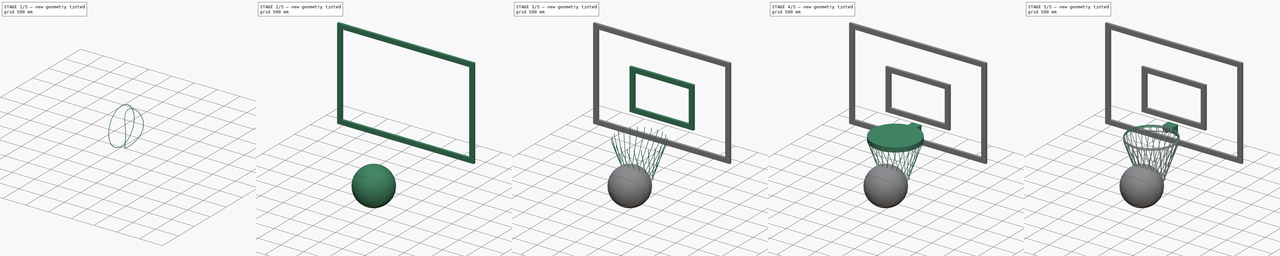
[diagram: build sequence overview — one tinted view per stage of 5, left to right]
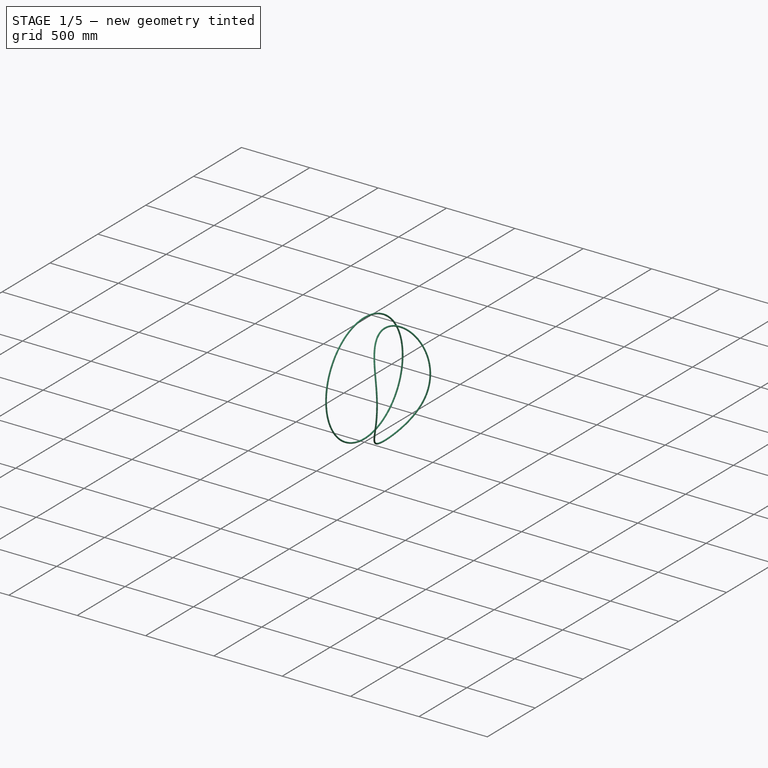
[diagram: stage 1 of 5 — iso view after this stage's code; geometry added in this stage tinted green]
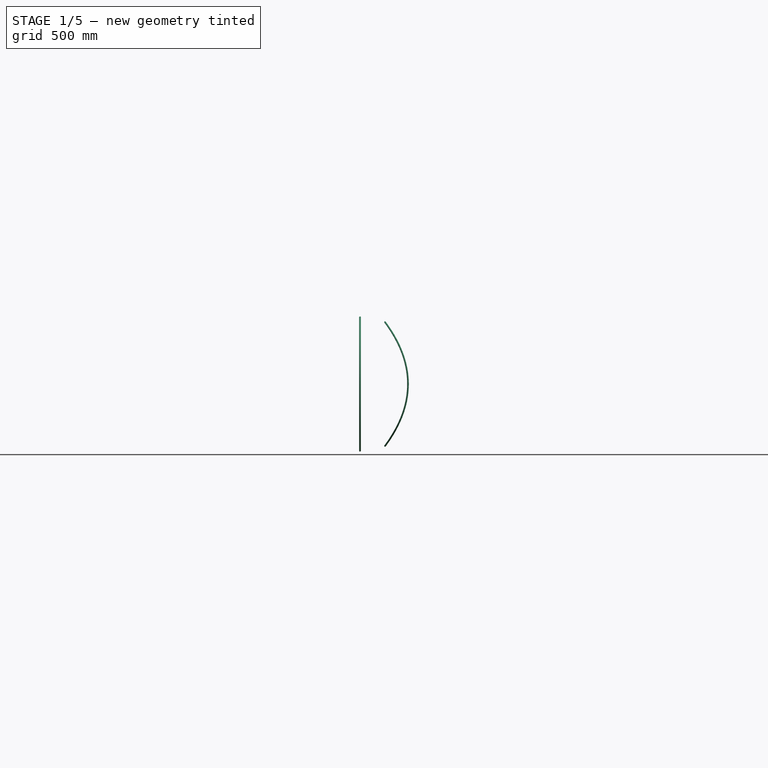
[diagram: stage 1 of 5 — front view after this stage's code; geometry added in this stage tinted green]
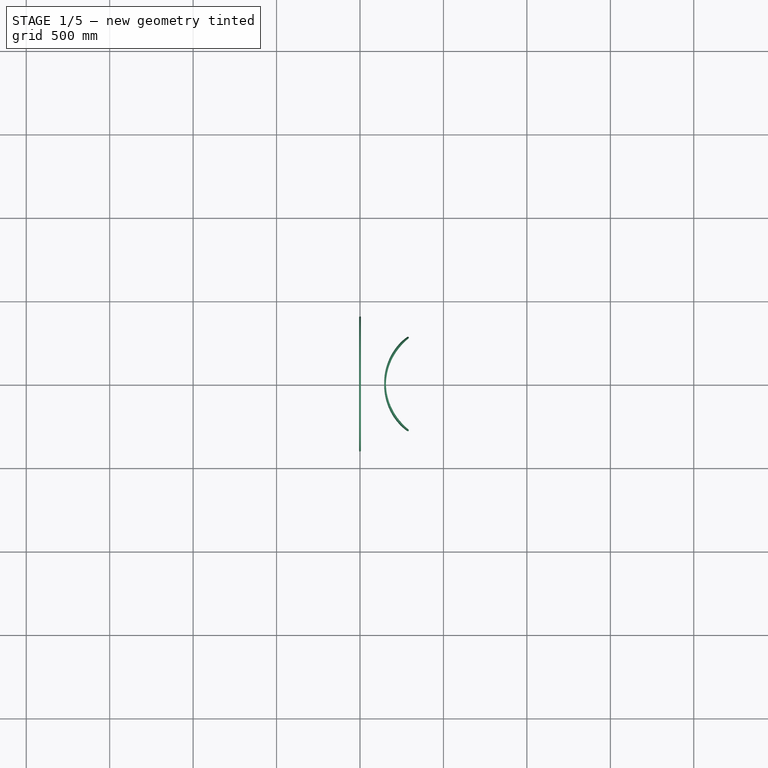
[diagram: stage 1 of 5 — top view after this stage's code; geometry added in this stage tinted green]
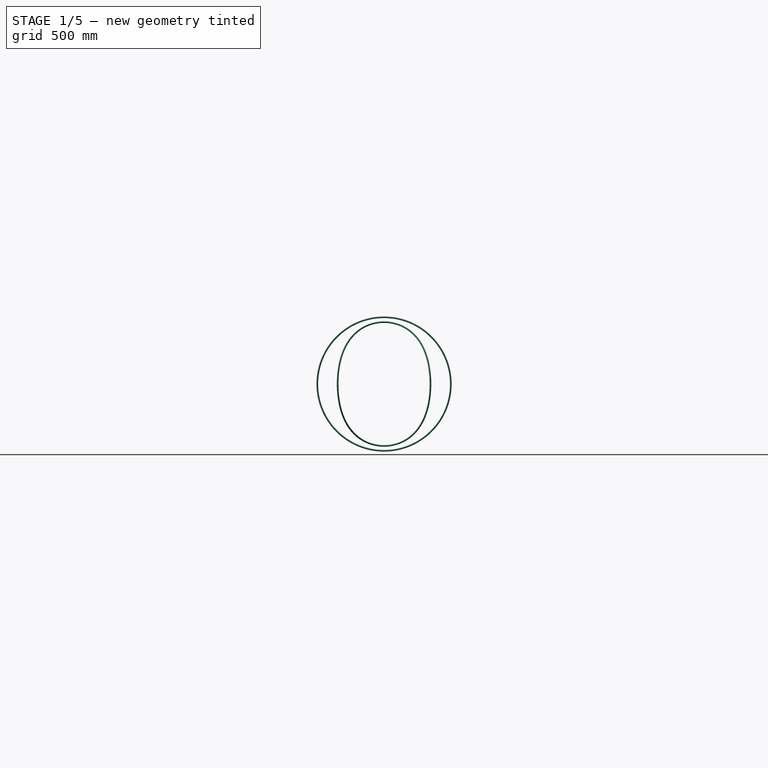
[diagram: stage 1 of 5 — right view after this stage's code; geometry added in this stage tinted green]
FCSTD DOCUMENT  (FreeCAD 0.18R14555 (Git shallow))
Label: BASKETBALL
License: CreativeCommons Attribution-NonCommercial-ShareAlike
LicenseURL: http://creativecommons.org/licenses/by-nc-sa/4.0/
objects: Part::Cut×6, Part::Cylinder×3, Part::Circle×3, Part::Sweep×3, Part::Torus×3, Part::FeaturePython×3, Part::Box×3, Part::Feature×3, Part::Sphere×2, Part::MultiFuse×2, Sketcher::SketchObject×2, Part::Mirroring×2, App::DocumentObjectGroupPython×2, Part::Chamfer×1, Part::Thickness×1, PartDesign::Revolution×1, PartDesign::Body×1, Part::Compound×1
note: 41 computed .brp shape members not serialized (recipe doc carries the construction recipe); baked Part::Feature solids carry a one-line shape summary decoded from their .brp

FEATURE [Part::Sphere] Sphere
  Angle1 = -90
  Angle2 = 90
  Angle3 = 360
  AttacherType = Attacher::AttachEngine3D
  Radius = 400
FEATURE [Part::Cylinder] Cylinder
  Angle = 360
  AttacherType = Attacher::AttachEngine3D
  Height = 1000
  Placement = pos=(500,0,-497.11) rot=(0,0,1;0rad)
  Radius = 350
FEATURE [Part::Cut] Cut
  Base = -> Sphere
  Tool = -> Cylinder
FEATURE [Part::Circle] Circle
  Angle0 = 0
  Angle1 = 360
  AttacherType = Attacher::AttachEngine3D
  Placement = pos=(150.01,8.2e-14,370.83) rot=(1,0,0;1.5708rad)
  Radius = 5
FEATURE [Part::Sweep] Sweep
  Frenet = true
  Sections = -> [Circle]
  Solid = true
  Spine = -> Cut [Edge2,Edge5,Edge6]
  Transition = 0
FEATURE [Part::Torus] Torus
  Angle1 = -180
  Angle2 = 180
  Angle3 = 360
  AttacherType = Attacher::AttachEngine3D
  Placement = pos=(0,0,0) rot=(1,0,0;1.5708rad)
  Radius1 = 400
  Radius2 = 5
FEATURE [Part::FeaturePython] Clone001  label="Torus001"  # Draft clone (typed FeaturePython)
  AttacherType = Attacher::AttachEngine3D
  Fuse = false
  Objects = -> [Torus]
  Placement = pos=(0,0,0) rot=(0.57735,0.57735,0.57735;2.0944rad)
  Scale = (1,1,1)
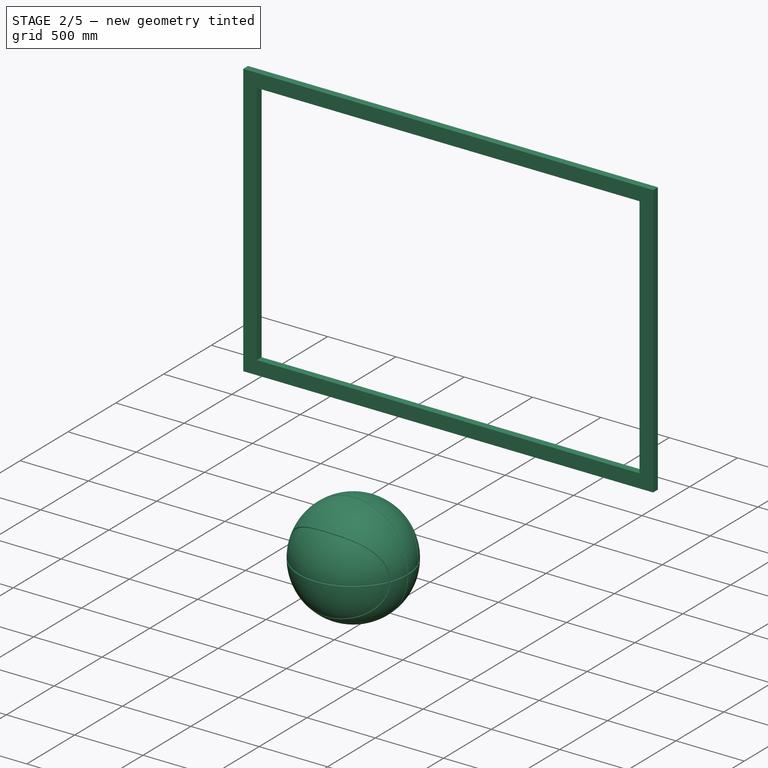
[diagram: stage 2 of 5 — iso view after this stage's code; geometry added in this stage tinted green]
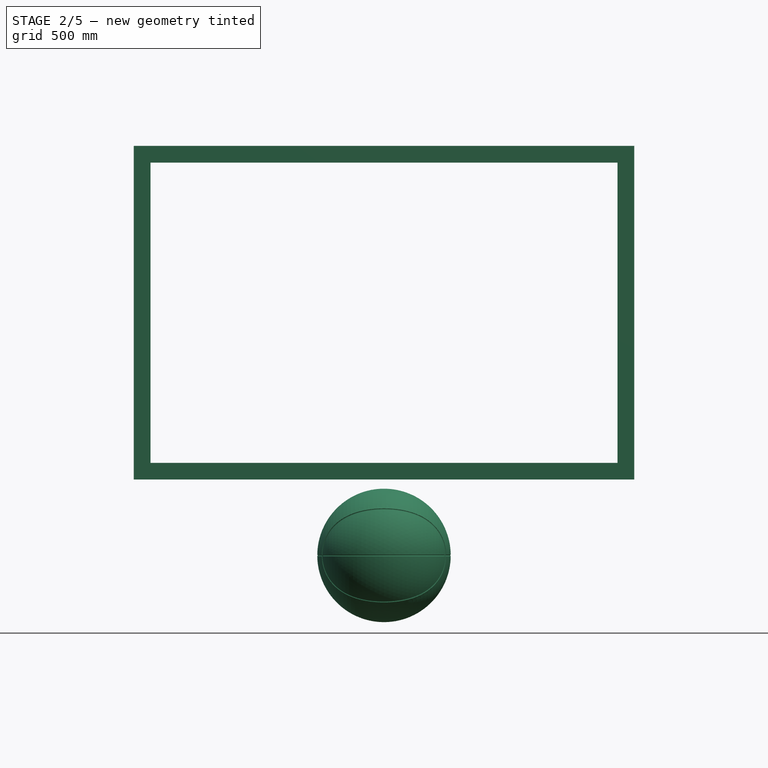
[diagram: stage 2 of 5 — front view after this stage's code; geometry added in this stage tinted green]
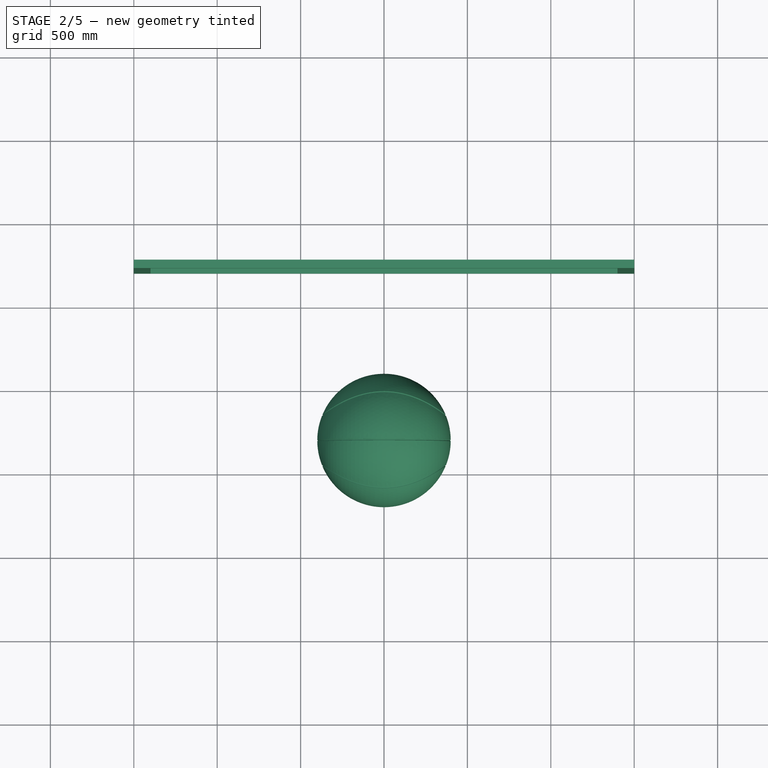
[diagram: stage 2 of 5 — top view after this stage's code; geometry added in this stage tinted green]
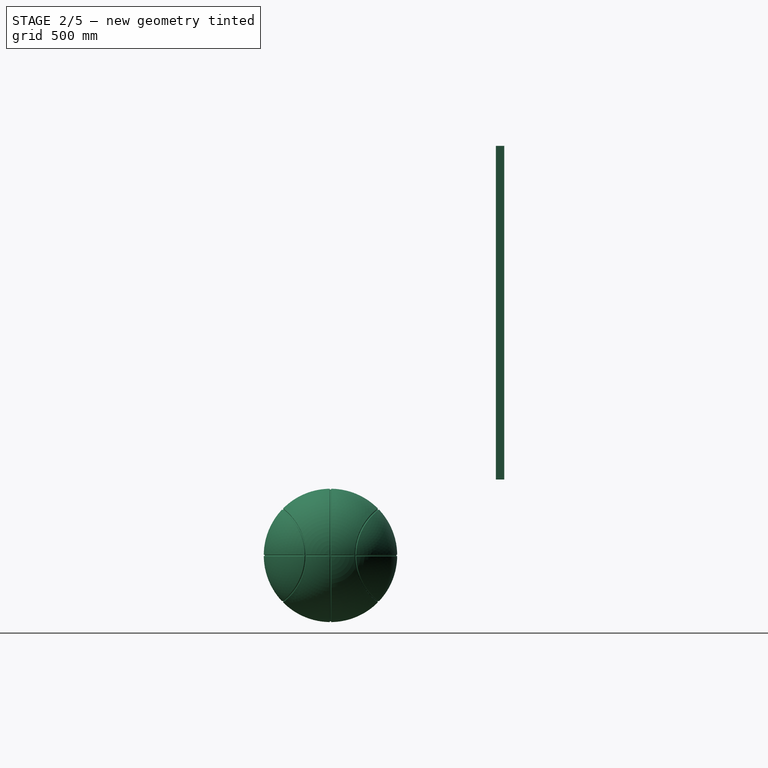
[diagram: stage 2 of 5 — right view after this stage's code; geometry added in this stage tinted green]
FEATURE [Part::Sphere] Sphere001
  Angle1 = -90
  Angle2 = 90
  Angle3 = 360
  AttacherType = Attacher::AttachEngine3D
  Radius = 400
FEATURE [Part::FeaturePython] Clone  label="Sweep001"  # Draft clone (typed FeaturePython)
  AttacherType = Attacher::AttachEngine3D
  Fuse = false
  Objects = -> [Sweep]
  Placement = pos=(0,0,0) rot=(0,0,1;3.14159rad)
  Scale = (1,1,1)
FEATURE [Part::MultiFuse] Fusion
  Shapes = -> [Clone001,Clone,Torus,Sweep]
FEATURE [Part::Cut] Cut001  label="BALL"
  Base = -> Sphere001
  Placement = pos=(0,-301.537,-855.05) rot=(0.57735,0.57735,0.57735;2.0944rad)
  Tool = -> Fusion
FEATURE [Part::Box] Box001  label="Cube001"
  AttacherType = Attacher::AttachEngine3D
  Height = 1800
  Length = 2800
  Placement = pos=(-1400,690,-300) rot=(0,0,1;0rad)
  Width = 50
FEATURE [Part::Cut] Cut005
  Base = -> Box001001
  Tool = -> Box001
FEATURE [Part::Feature] Box001002002  label="Cube005"
  Placement = pos=(-1400,710,-300) rot=(0,0,1;0rad)
  shape: bbox 2800 x 50 x 1800 mm, 6 faces (baked)
FEATURE [App::DocumentObjectGroupPython] My_Placer  # scripted group (container) (typed FeaturePython)
  Placement = pos=(0,-301.537,-855.05) rot=(0.57735,0.57735,0.57735;20.944rad)
  RotAxis = (1,1,1)
  RotCenter = (0,0,0)
  arc = time*600
  arc0 = 0
  arc1 = 90
  target = -> Cut001
  time = 2
  x = 0
  x0 = -0.939693
  x1 = 200
  y = -5000-5000*x0
  y0 = -0.34202
  y1 = 0
  z = 2500*y0
  z0 = 0
  z1 = 0
  expr: y0 = sin(time * 100)
  expr: x0 = cos(time * 100)
FEATURE [App::DocumentObjectGroupPython] My_Manager  # scripted group (container) (typed FeaturePython)
  Group = -> [My_Placer]
  intervall = 200
  sleeptime = 0.02
  start = 0
  step = 200
  text = NO
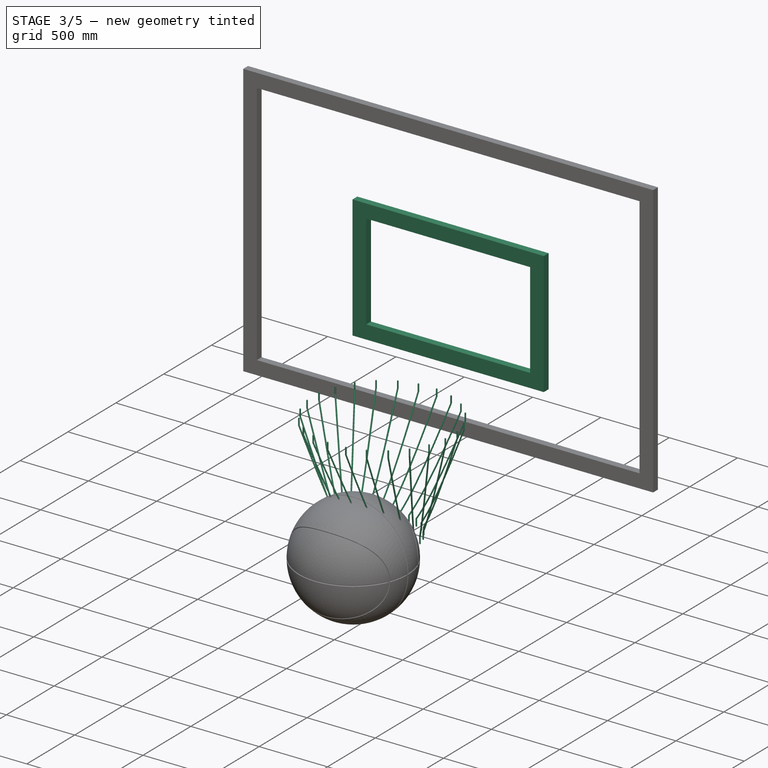
[diagram: stage 3 of 5 — iso view after this stage's code; geometry added in this stage tinted green]
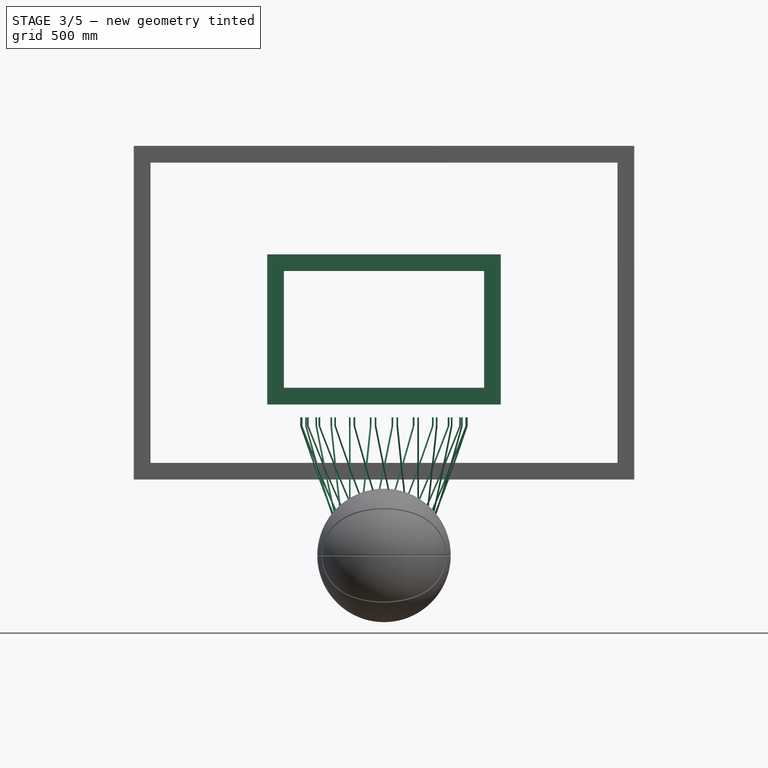
[diagram: stage 3 of 5 — front view after this stage's code; geometry added in this stage tinted green]
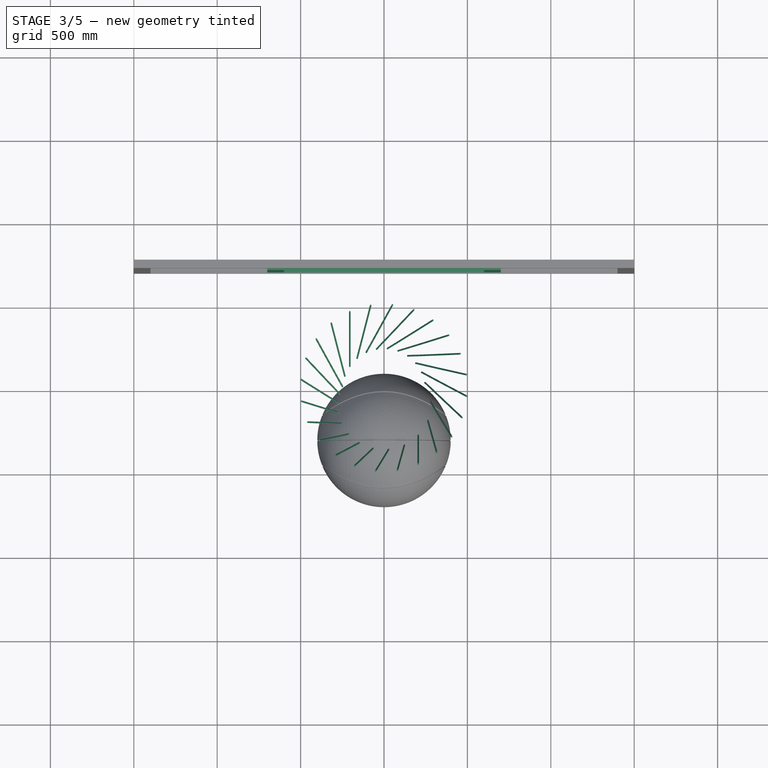
[diagram: stage 3 of 5 — top view after this stage's code; geometry added in this stage tinted green]
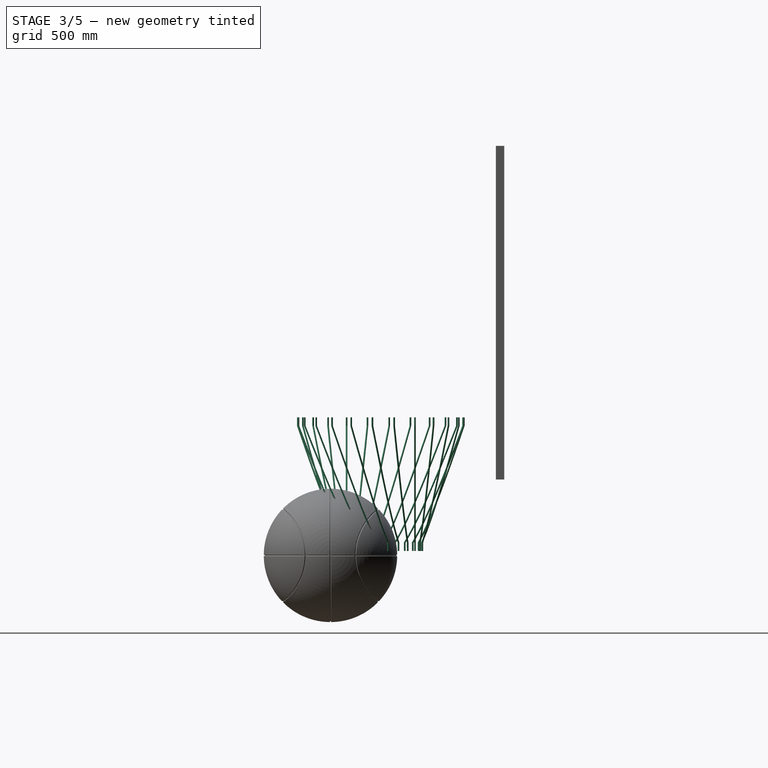
[diagram: stage 3 of 5 — right view after this stage's code; geometry added in this stage tinted green]
FEATURE [Sketcher::SketchObject] Sketch001
  MapMode = 5
  Placement = pos=(0,0,0) rot=(0.57735,0.57735,0.57735;2.0944rad)
  Support = -> [YZ_Plane]
  sketch-geometry (6):
    g0: LineSegment StartX=0 StartY=0 StartZ=0 EndX=0 EndY=-800 EndZ=0
    g1: LineSegment StartX=0 StartY=-800 StartZ=0 EndX=-250 EndY=-800 EndZ=0
    g2: LineSegment StartX=-250 StartY=-800 StartZ=0 EndX=-250 EndY=-750 EndZ=0
    g3: LineSegment StartX=-250 StartY=-750 StartZ=0 EndX=-500 EndY=-50 EndZ=0
    g4: LineSegment StartX=-500 StartY=-50 StartZ=0 EndX=-500 EndY=0 EndZ=0
    g5: LineSegment StartX=-500 StartY=0 StartZ=0 EndX=0 EndY=0 EndZ=0
  constraints (17):
    c: Coincident(g-1,g0)
    c: Vertical(g0)
    c: Coincident(g0,g1)
    c: Horizontal(g1)
    c: Coincident(g1,g2)
    c: Coincident(g2,g3)
    c: Coincident(g3,g4)
    c: Vertical(g4)
    c: Coincident(g4,g5)
    c: Coincident(g5,g0)
    c: Horizontal(g5)
    c: Vertical(g2)
    c: DistanceX(g5,g5) = 500
    c: DistanceX(g1,g1) = 250
    c: DistanceY(g4,g4) = 50
    c: DistanceY(g2,g2) = 50
    c: DistanceY(g0,g0) = 800
FEATURE [PartDesign::Revolution] Revolution
  Angle = 360
  Axis = (-2e-16,3e-16,1)
  Base = (0,0,0)
  Placement = pos=(0,0,0) rot=(0.57735,0.57735,0.57735;2.0944rad)
  Profile = -> Sketch001
  ReferenceAxis = -> Sketch001 [V_Axis]
FEATURE [PartDesign::Body] Body
  Group = -> [Sketch,Sketch001,Revolution]
  Origin = -> Origin
  Tip = -> Revolution
FEATURE [Part::Cylinder] Cylinder002
  Angle = 360
  AttacherType = Attacher::AttachEngine3D
  Height = 500
  Placement = pos=(205,0,4.6e-14) rot=(0,1,0;1.5708rad)
  Radius = 1000
FEATURE [Part::Cut] Cut003
  Base = -> Revolution
  Tool = -> Cylinder002
FEATURE [Part::Circle] Circle002
  Angle0 = 0
  Angle1 = 360
  AttacherType = Attacher::AttachEngine3D
  Placement = pos=(205,-456.07,0) rot=(0,0,1;0rad)
  Radius = 5
FEATURE [Part::Sweep] Sweep002  label="Sweep003"
  Frenet = true
  Placement = pos=(0,0,-27.75) rot=(0,0,1;0.523599rad)
  Sections = -> [Circle002]
  Solid = true
  Spine = -> Cut003 [Edge8,Edge7,Edge6]
  Transition = 0
FEATURE [Part::FeaturePython] Array  # Draft array (typed FeaturePython)
  Angle = 360
  ArrayType = 1
  Axis = (0,0,1)
  Base = -> Sweep002
  Center = (0,0,0)
  Fuse = false
  IntervalAxis = (0,0,0)
  IntervalX = (1,0,0)
  IntervalY = (0,1,0)
  IntervalZ = (0,0,1)
  NumberPolar = 24
  NumberX = 2
  NumberY = 2
  NumberZ = 1
FEATURE [Part::Feature] Box001001  label="Cube002"
  Placement = pos=(-1500,690,-400) rot=(0,0,1;0rad)
  shape: bbox 3000 x 50 x 2000 mm, 6 faces (baked)
FEATURE [Part::Box] Box001002  label="Cube003"
  AttacherType = Attacher::AttachEngine3D
  Height = 900
  Length = 1400
  Placement = pos=(-700,690,50) rot=(0,0,1;0rad)
  Width = 50
FEATURE [Part::Feature] Box001002001  label="Cube004"
  Placement = pos=(-600,690,150) rot=(0,0,1;0rad)
  shape: bbox 1200 x 50 x 700 mm, 6 faces (baked)
FEATURE [Part::Cut] Cut004
  Base = -> Box001002
  Tool = -> Box001002001
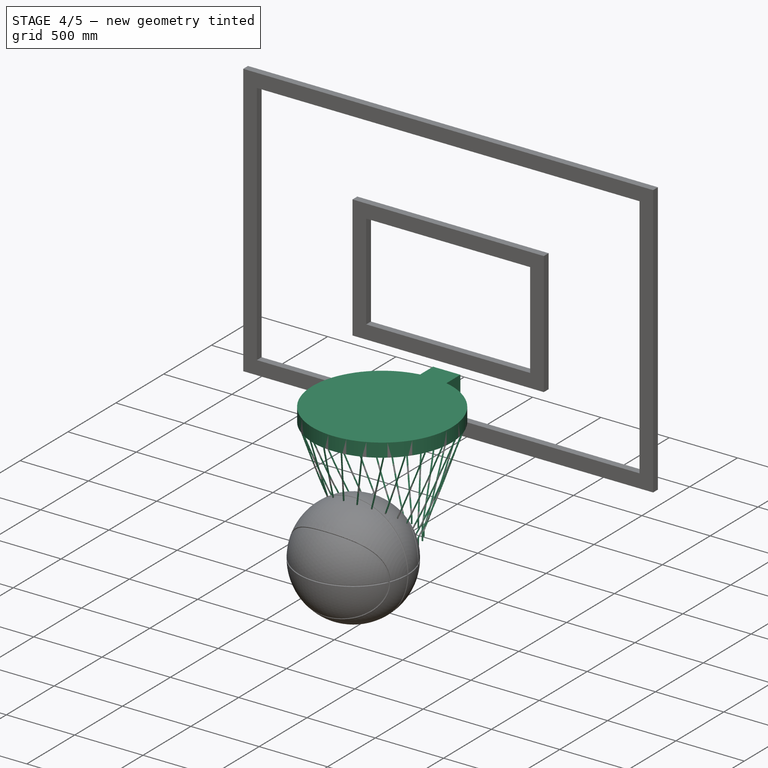
[diagram: stage 4 of 5 — iso view after this stage's code; geometry added in this stage tinted green]
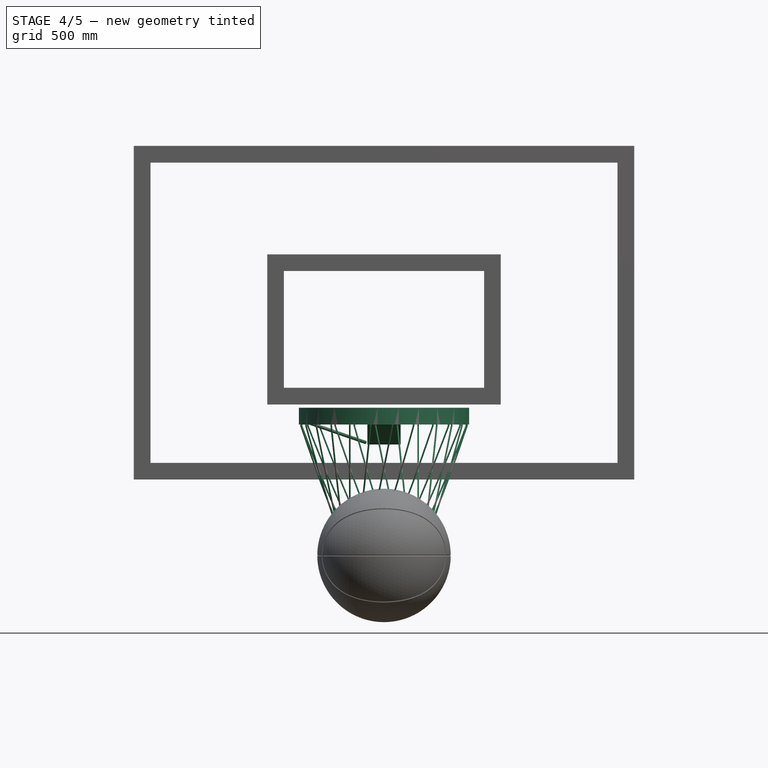
[diagram: stage 4 of 5 — front view after this stage's code; geometry added in this stage tinted green]
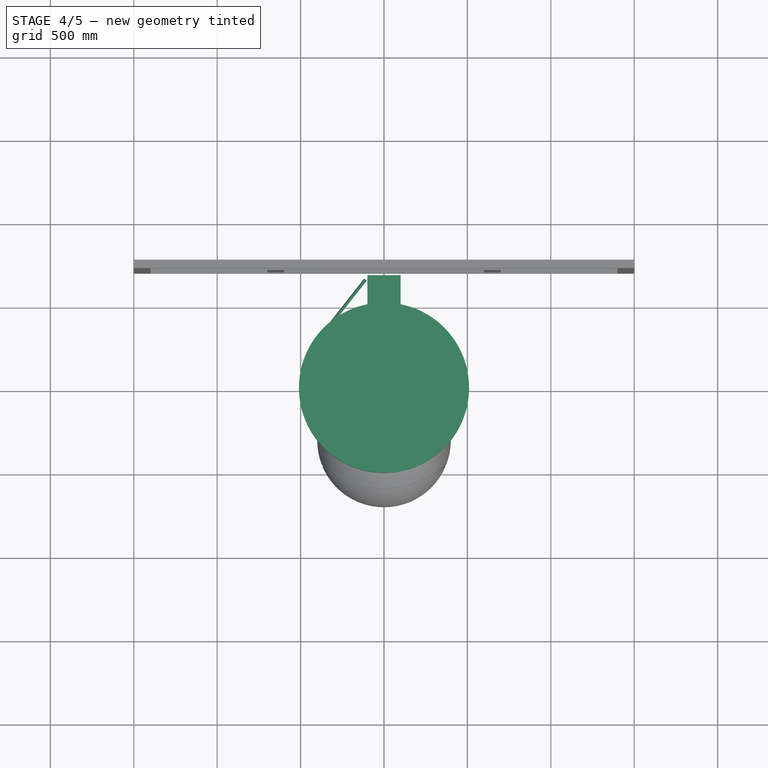
[diagram: stage 4 of 5 — top view after this stage's code; geometry added in this stage tinted green]
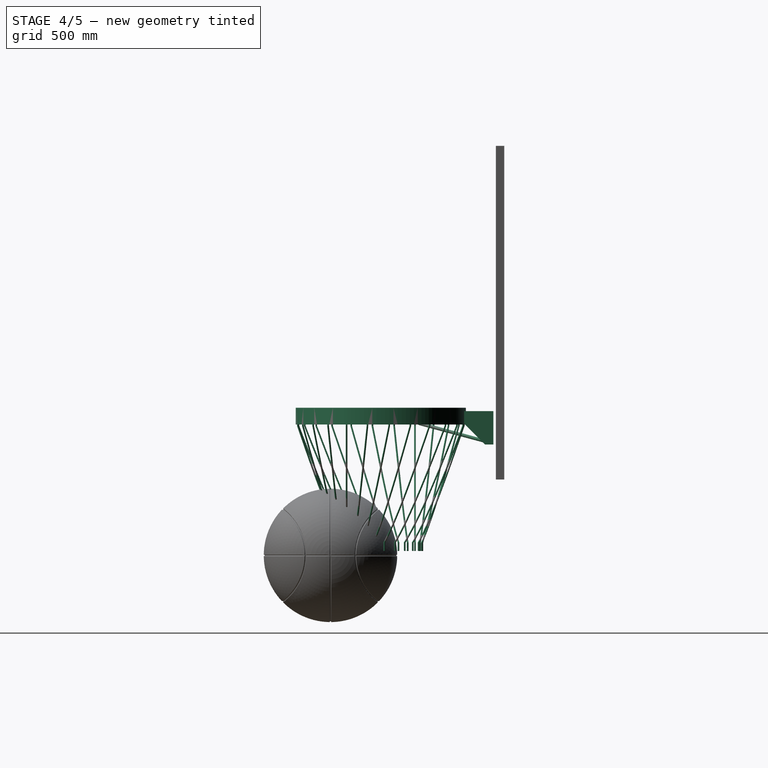
[diagram: stage 4 of 5 — right view after this stage's code; geometry added in this stage tinted green]
FEATURE [Part::Box] Box  label="Cube"
  AttacherType = Attacher::AttachEngine3D
  Height = 200
  Length = 200
  Placement = pos=(-100,475,-190) rot=(0,0,1;0rad)
  Width = 200
FEATURE [Part::Chamfer] Chamfer
  Base = -> Box
  Edges = 1 edges r=150: [Edge9]
FEATURE [Part::Cylinder] Cylinder001
  Angle = 360
  AttacherType = Attacher::AttachEngine3D
  Height = 100
  Placement = pos=(0,0,-70) rot=(0,0,1;0rad)
  Radius = 510
FEATURE [Sketcher::SketchObject] Sketch
  MapMode = 5
  Placement = pos=(0,0,0) rot=(0.57735,0.57735,0.57735;2.0944rad)
  Support = -> [YZ_Plane]
  sketch-geometry (3):
    g0: LineSegment StartX=0 StartY=0 StartZ=0 EndX=0 EndY=-20 EndZ=0
    g1: ArcOfCircle CenterX=20 CenterY=-20 CenterZ=0 NormalX=0 NormalY=0 NormalZ=1 AngleXU=0 Radius=20 StartAngle=3.14159 EndAngle=4.50295
    g2: LineSegment StartX=15.8418 StartY=-39.563 StartZ=0 EndX=544.041 EndY=-151.835 EndZ=0
  constraints (8):
    c: Coincident(g-1,g0)
    c: Vertical(g0)
    c: Tangent(g0,g1) = -1.5708
    c: Tangent(g1,g2) = -1.5708
    c: Radius(g1) = 20
    c: DistanceY(g0,g0) = 20
    c: Angle(g2,g-1) = 0.20944
    c: Distance(g2) = 540
FEATURE [Part::Circle] Circle001
  Angle0 = 0
  Angle1 = 360
  AttacherType = Attacher::AttachEngine3D
  Radius = 10
FEATURE [Part::Sweep] Sweep001  label="Sweep002"
  Frenet = true
  Placement = pos=(446.986,221.551,-25) rot=(0,0,1;0.663225rad)
  Sections = -> [Circle001]
  Solid = true
  Spine = -> Sketch [Edge1,Edge2,Edge3]
  Transition = 1
FEATURE [Part::Mirroring] Part__Mirroring  label="Sweep002 (Mirror #1)"
  Base = (0,0,0)
  Normal = (1,0,0)
  Source = -> Sweep001
FEATURE [Part::Mirroring] Part__Mirroring001  label="Array (Mirror #2)"
  Base = (0,0,0)
  Normal = (1,0,0)
  Source = -> Array
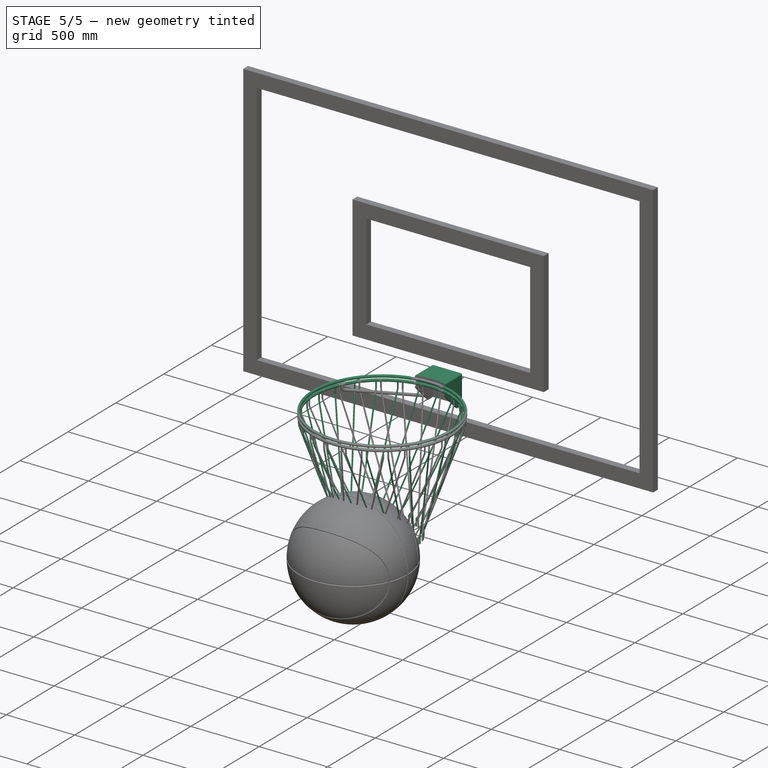
[diagram: stage 5 of 5 — iso view after this stage's code; geometry added in this stage tinted green]
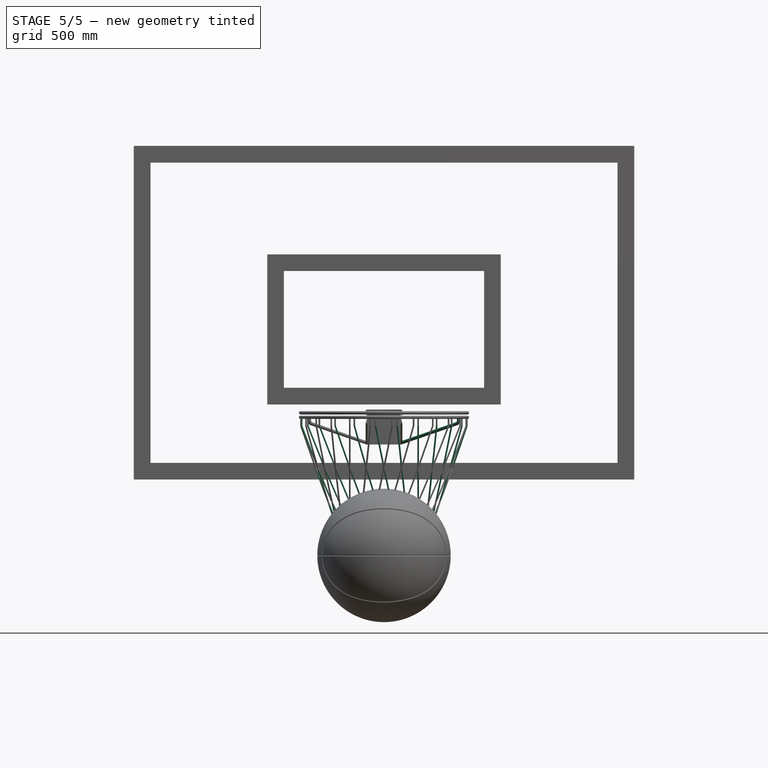
[diagram: stage 5 of 5 — front view after this stage's code; geometry added in this stage tinted green]
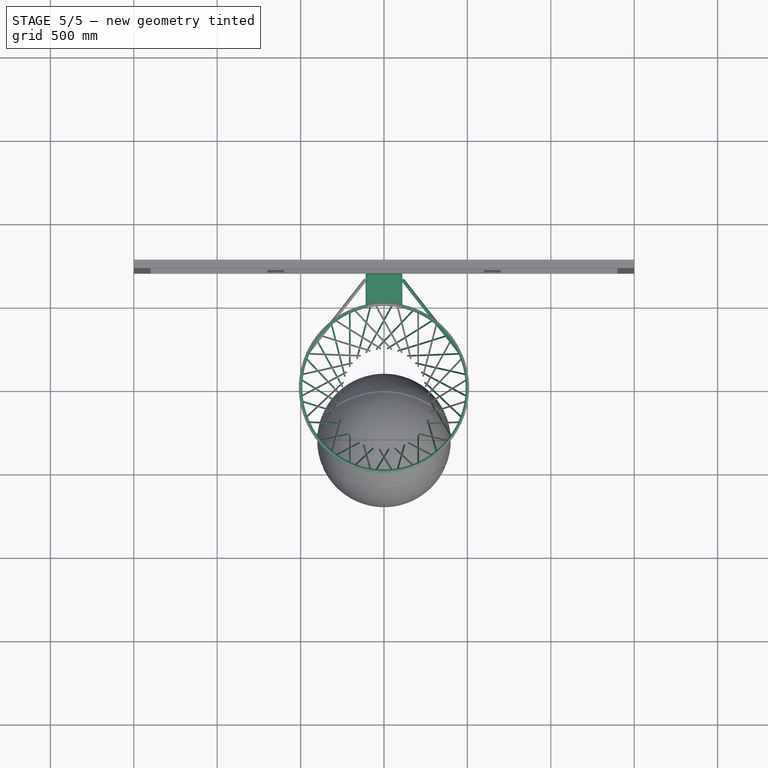
[diagram: stage 5 of 5 — top view after this stage's code; geometry added in this stage tinted green]
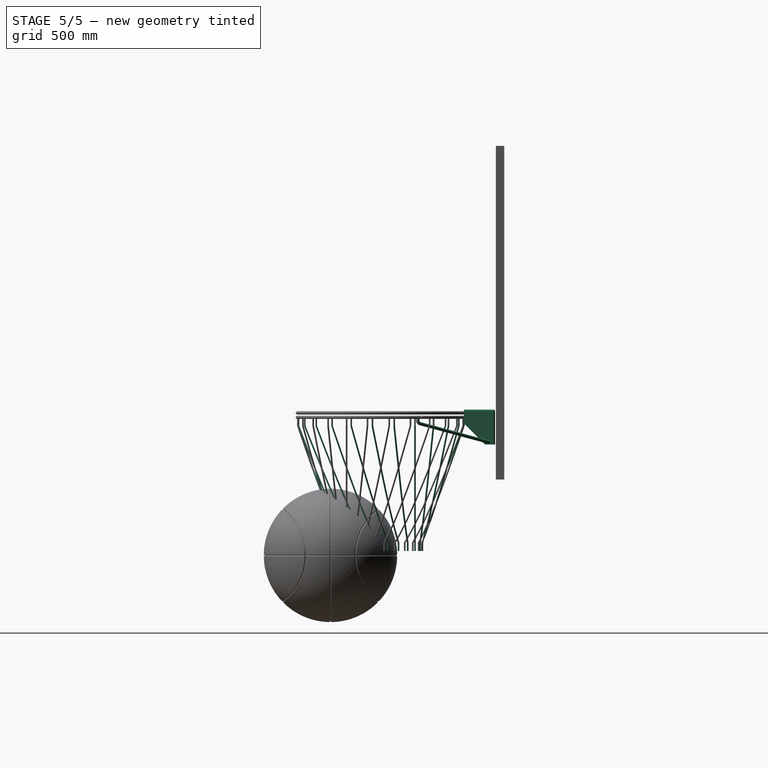
[diagram: stage 5 of 5 — right view after this stage's code; geometry added in this stage tinted green]
FEATURE [Part::Torus] Torus001  label="Torus002"
  Angle1 = -180
  Angle2 = 180
  Angle3 = 360
  AttacherType = Attacher::AttachEngine3D
  Radius1 = 500
  Radius2 = 10
FEATURE [Part::Torus] Torus002  label="Torus003"
  Angle1 = -180
  Angle2 = 180
  Angle3 = 360
  AttacherType = Attacher::AttachEngine3D
  Placement = pos=(0,0,-26.79) rot=(0,0,1;0rad)
  Radius1 = 500
  Radius2 = 10
FEATURE [Part::Thickness] Thickness
  Faces = -> Chamfer [Face2,Face3,Face5]
  Intersection = false
  Join = 0
  Mode = 0
  SelfIntersection = false
  Value = 10
FEATURE [Part::Cut] Cut002
  Base = -> Thickness
  Tool = -> Cylinder001
FEATURE [Part::MultiFuse] Fusion001
  Shapes = -> [Part__Mirroring,Sweep001,Cut002,Torus002,Torus001]
FEATURE [Part::Compound] Compound  label="BASKET"
  Links = -> [Fusion001,Part__Mirroring001,Array]
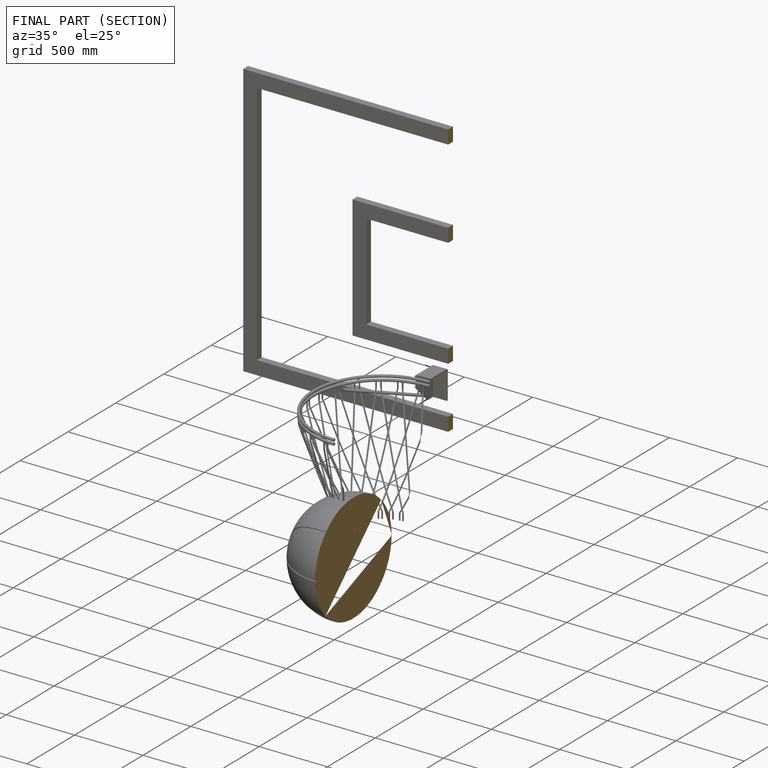
[diagram: finished part — half-section view (interior)]
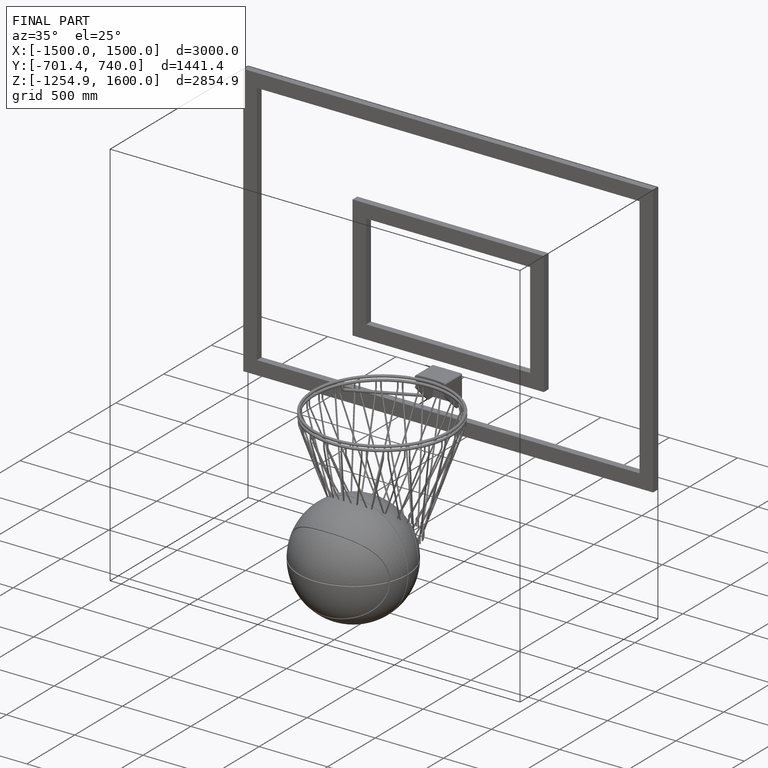
[diagram: finished part — iso view with bounding-box wireframe]
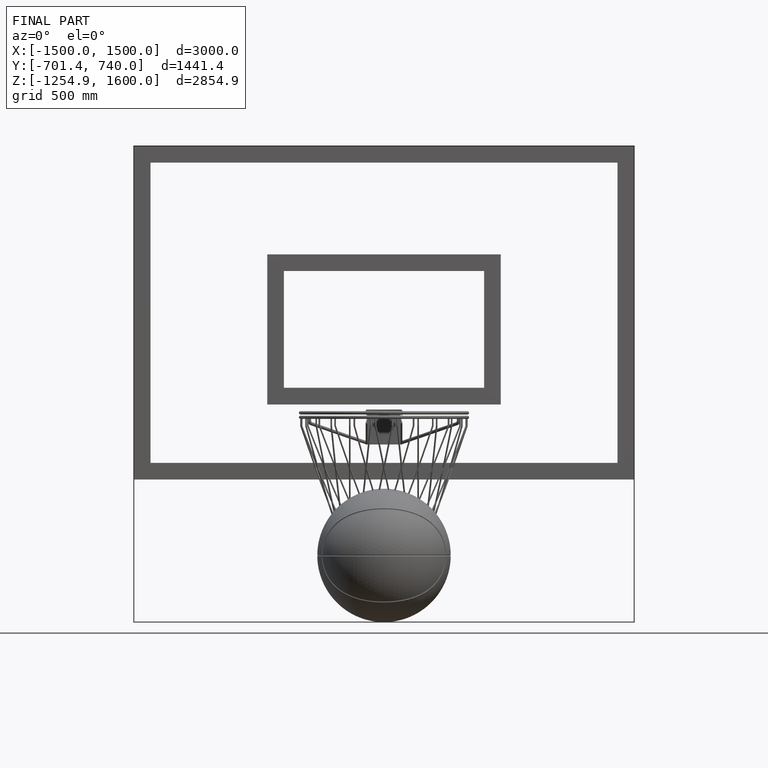
[diagram: finished part — front view with bounding-box wireframe]
